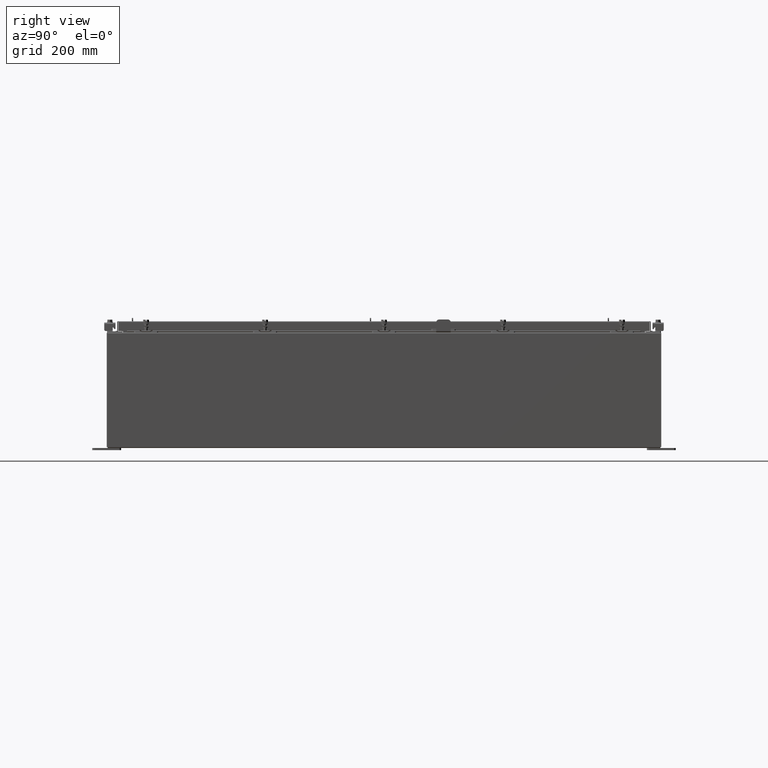
[diagram: clean part render]
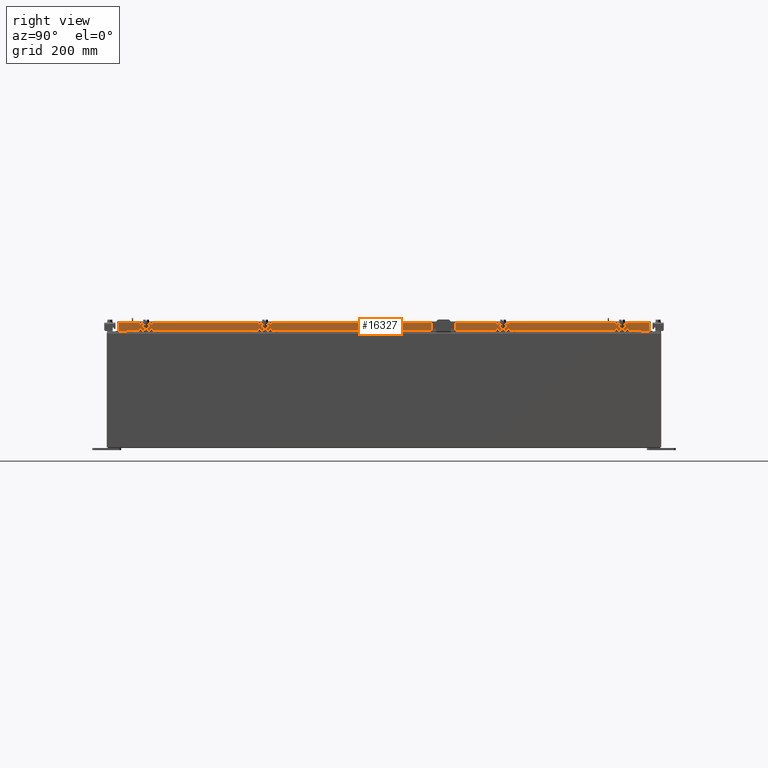
[diagram: same view with one face highlighted and labeled with its STEP entity id]
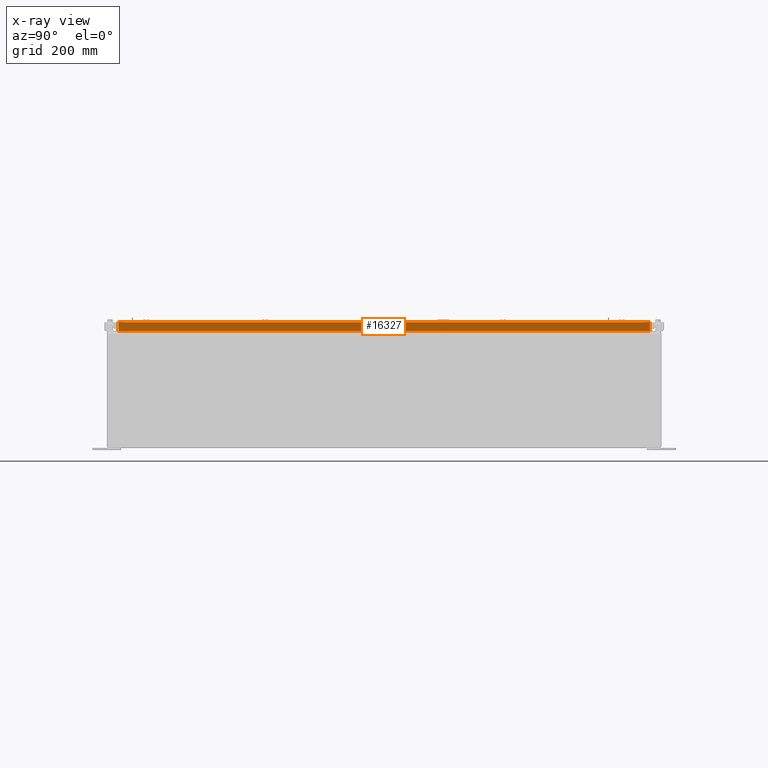
[diagram: x-ray of the same camera — body ghosted, the highlighted face saturated]
A machine part, right view. The second image highlights one B-rep face of the part: STEP entity #16327.
The next image is the same camera in x-ray: the body ghosted, the highlighted face saturated — about 0% of this face is hidden behind the body in this view.
In plain terms, the highlighted planar face has unit normal (1, 0, 0).
Its self-contained STEP definition (entity closure, byte-faithful):
#416 = EDGE_CURVE ( 'NONE', #23632, #7201, #25072, .T. ) ;
#1700 = EDGE_CURVE ( 'NONE', #26488, #23632, #18368, .T. ) ;
#3828 = VERTEX_POINT ( 'NONE', #26842 ) ;
#3867 = PLANE ( 'NONE',  #24386 ) ;
#4319 = VECTOR ( 'NONE', #18725, 39.37007874015748100 ) ;
#4607 = EDGE_CURVE ( 'NONE', #3828, #16717, #25259, .T. ) ;
#5807 = ORIENTED_EDGE ( 'NONE', *, *, #25149, .F. ) ;
#5899 = CARTESIAN_POINT ( 'NONE',  ( 17.07800000000000300, -23.09400000000000100, -0.8499999999999996400 ) ) ;
#6745 = LINE ( 'NONE', #13509, #18745 ) ;
#7201 = VERTEX_POINT ( 'NONE', #16116 ) ;
#8167 = DIRECTION ( 'NONE',  ( 1.000000000000000000, 0.0000000000000000000, 2.818880942772360100E-015 ) ) ;
#9390 = CARTESIAN_POINT ( 'NONE',  ( 17.07800000000000300, -23.00515786437626900, -0.8499999999999996400 ) ) ;
#9785 = CARTESIAN_POINT ( 'NONE',  ( 17.07800000000000300, 23.00515786437626900, 2.090458211578981100E-013 ) ) ;
#11168 = ORIENTED_EDGE ( 'NONE', *, *, #15570, .T. ) ;
#11633 = CARTESIAN_POINT ( 'NONE',  ( 17.07800000000000300, -23.00515786437627200, -0.07469999999999978000 ) ) ;
#12330 = CARTESIAN_POINT ( 'NONE',  ( 17.07800000000000300, 4.149702416982616300E-018, -0.08770000000000115200 ) ) ;
#13064 = DIRECTION ( 'NONE',  ( -2.818880942772360100E-015, -6.982962677686265900E-015, 1.000000000000000000 ) ) ;
#13509 = CARTESIAN_POINT ( 'NONE',  ( 17.07799999999999200, 22.25515786437627200, -0.8500000000000010900 ) ) ;
#13547 = CARTESIAN_POINT ( 'NONE',  ( 17.07799999999999200, 22.25515786437627200, -0.8500000000000010900 ) ) ;
#14992 = DIRECTION ( 'NONE',  ( 0.0000000000000000000, -1.000000000000000000, 0.0000000000000000000 ) ) ;
#15570 = EDGE_CURVE ( 'NONE', #3828, #15945, #26077, .T. ) ;
#15619 = DIRECTION ( 'NONE',  ( 0.0000000000000000000, -1.000000000000000000, 0.0000000000000000000 ) ) ;
#15641 = ORIENTED_EDGE ( 'NONE', *, *, #416, .F. ) ;
#15945 = VERTEX_POINT ( 'NONE', #24445 ) ;
#16046 = VECTOR ( 'NONE', #24655, 39.37007874015748100 ) ;
#16116 = CARTESIAN_POINT ( 'NONE',  ( 17.07800000000000300, -23.00515786437627200, -0.08770000000000224800 ) ) ;
#16327 = ADVANCED_FACE ( 'NONE', ( #23371 ), #3867, .T. ) ;
#16717 = VERTEX_POINT ( 'NONE', #13547 ) ;
#16979 = EDGE_CURVE ( 'NONE', #15945, #7201, #21309, .T. ) ;
#18368 = LINE ( 'NONE', #5899, #19050 ) ;
#18725 = DIRECTION ( 'NONE',  ( 1.333810383284160400E-031, -1.000000000000000000, -4.731701729738051400E-017 ) ) ;
#18745 = VECTOR ( 'NONE', #15619, 39.37007874015748100 ) ;
#18994 = CARTESIAN_POINT ( 'NONE',  ( 17.07800000000000300, -23.09400000000000100, -0.8499999999999996400 ) ) ;
#19050 = VECTOR ( 'NONE', #14992, 39.37007874015748100 ) ;
#19142 = DIRECTION ( 'NONE',  ( 0.0000000000000000000, -1.000000000000000000, 0.0000000000000000000 ) ) ;
#19370 = VECTOR ( 'NONE', #13064, 39.37007874015748100 ) ;
#21286 = CARTESIAN_POINT ( 'NONE',  ( 17.07799999999999200, -22.25515786437626200, -0.8500000000000010900 ) ) ;
#21309 = LINE ( 'NONE', #12330, #4319 ) ;
#22954 = CARTESIAN_POINT ( 'NONE',  ( 17.07800000000000300, 0.0000000000000000000, 4.840166239667795300E-014 ) ) ;
#23048 = DIRECTION ( 'NONE',  ( 2.818880942772360100E-015, 0.0000000000000000000, -1.000000000000000000 ) ) ;
#23190 = EDGE_LOOP ( 'NONE', ( #15641, #24338, #5807, #23468, #11168, #23520 ) ) ;
#23371 = FACE_OUTER_BOUND ( 'NONE', #23190, .T. ) ;
#23468 = ORIENTED_EDGE ( 'NONE', *, *, #4607, .F. ) ;
#23520 = ORIENTED_EDGE ( 'NONE', *, *, #16979, .T. ) ;
#23632 = VERTEX_POINT ( 'NONE', #9390 ) ;
#24338 = ORIENTED_EDGE ( 'NONE', *, *, #1700, .F. ) ;
#24386 = AXIS2_PLACEMENT_3D ( 'NONE', #22954, #8167, #23048 ) ;
#24445 = CARTESIAN_POINT ( 'NONE',  ( 17.07800000000000300, 23.00515786437626200, -0.08770000000000115200 ) ) ;
#24655 = DIRECTION ( 'NONE',  ( -2.818880942772360100E-015, -6.982962677686265900E-015, 1.000000000000000000 ) ) ;
#25072 = LINE ( 'NONE', #11633, #19370 ) ;
#25149 = EDGE_CURVE ( 'NONE', #16717, #26488, #6745, .T. ) ;
#25259 = LINE ( 'NONE', #18994, #25927 ) ;
#25927 = VECTOR ( 'NONE', #19142, 39.37007874015748100 ) ;
#26077 = LINE ( 'NONE', #9785, #16046 ) ;
#26488 = VERTEX_POINT ( 'NONE', #21286 ) ;
#26842 = CARTESIAN_POINT ( 'NONE',  ( 17.07800000000000300, 23.00515786437627200, -0.8499999999999996400 ) ) ;